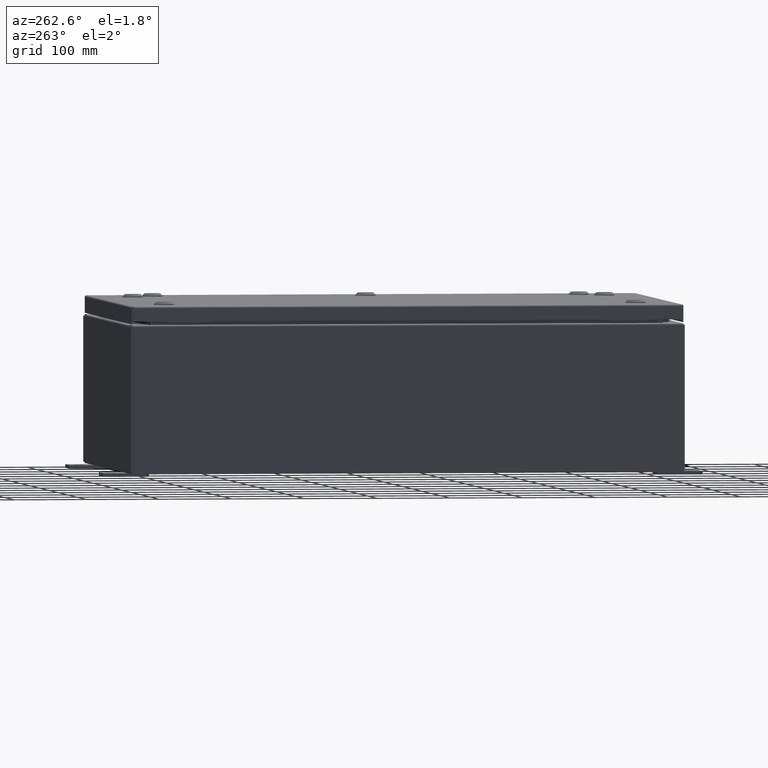
[diagram: clean part render]
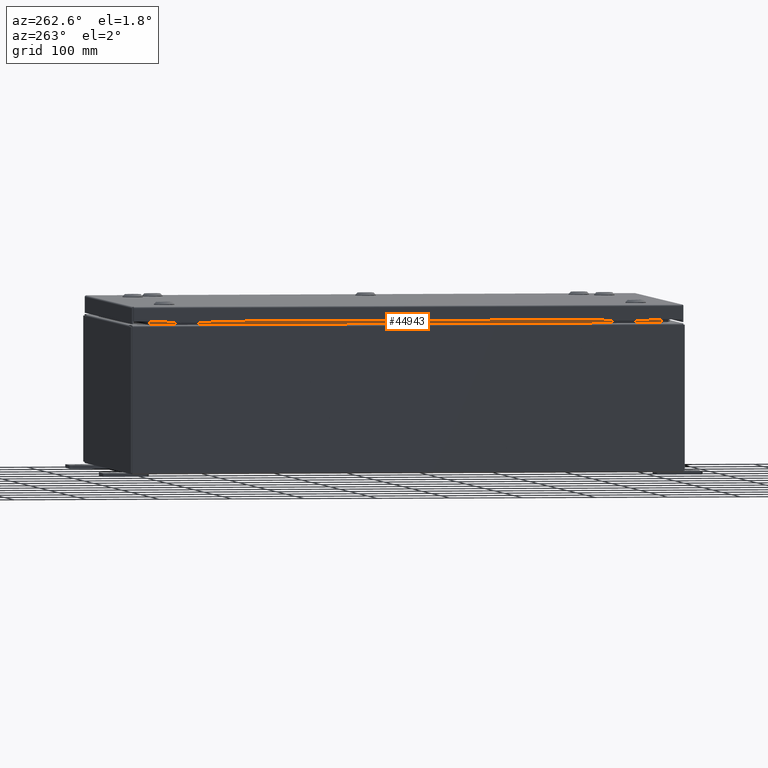
[diagram: same view with one face highlighted and labeled with its STEP entity id]
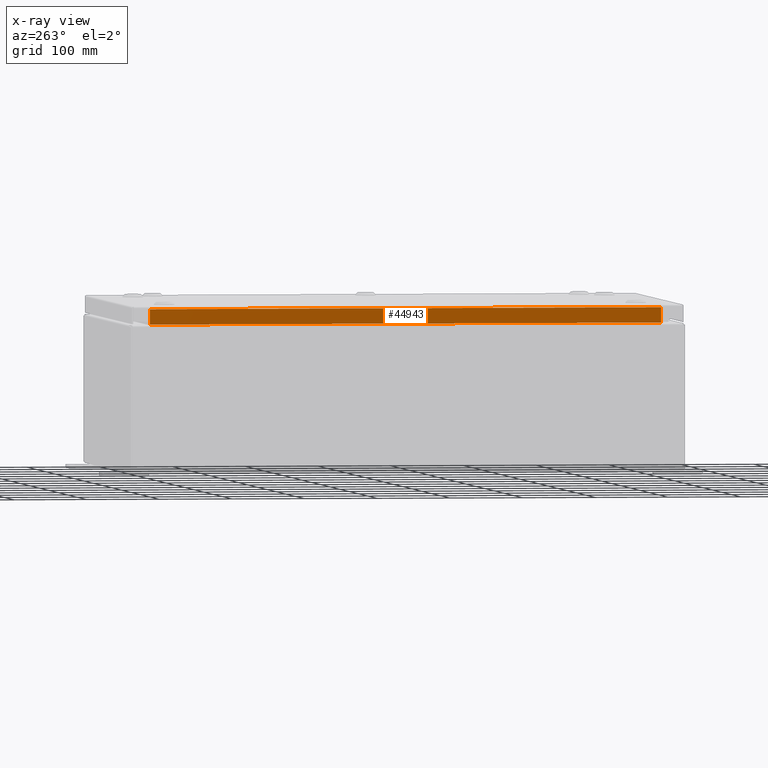
[diagram: x-ray of the same camera — body ghosted, the highlighted face saturated]
A machine part, auxiliary view. The second image highlights one B-rep face of the part: STEP entity #44943.
The next image is the same camera in x-ray: the body ghosted, the highlighted face saturated — about 0% of this face is hidden behind the body in this view.
In plain terms, the highlighted planar face has unit normal (-1, 0, -0).
Its self-contained STEP definition (entity closure, byte-faithful):
#295 = VERTEX_POINT ( 'NONE', #60943 ) ;
#2268 = DIRECTION ( 'NONE',  ( 3.542869979895294000E-015, -0.0000000000000000000, -1.000000000000000000 ) ) ;
#2283 = VECTOR ( 'NONE', #34105, 39.37007874015748100 ) ;
#2429 = EDGE_LOOP ( 'NONE', ( #15736, #14765, #26452, #62632 ) ) ;
#7676 = DIRECTION ( 'NONE',  ( -3.542869979895302300E-015, -0.0000000000000000000, 1.000000000000000000 ) ) ;
#10352 = VECTOR ( 'NONE', #7676, 39.37007874015748100 ) ;
#11947 = VERTEX_POINT ( 'NONE', #22346 ) ;
#11971 = PLANE ( 'NONE',  #39760 ) ;
#14153 = CARTESIAN_POINT ( 'NONE',  ( -8.949700000000030200, 13.84375000000000000, 8.762900000000005500 ) ) ;
#14765 = ORIENTED_EDGE ( 'NONE', *, *, #43202, .F. ) ;
#15736 = ORIENTED_EDGE ( 'NONE', *, *, #17325, .F. ) ;
#16938 = DIRECTION ( 'NONE',  ( -1.000000000000000000, 2.796520378189531300E-031, -3.542869979895303100E-015 ) ) ;
#17325 = EDGE_CURVE ( 'NONE', #25053, #11947, #54765, .T. ) ;
#19342 = CARTESIAN_POINT ( 'NONE',  ( -8.949700000000028400, -13.84374999999999600, 7.938300000000006100 ) ) ;
#22346 = CARTESIAN_POINT ( 'NONE',  ( -8.949700000000028400, -13.84374999999999800, 7.938300000000007900 ) ) ;
#25053 = VERTEX_POINT ( 'NONE', #30595 ) ;
#26452 = ORIENTED_EDGE ( 'NONE', *, *, #33775, .F. ) ;
#26690 = CARTESIAN_POINT ( 'NONE',  ( -8.949700000000000000, 2.502801842868284900E-030, -3.170762345906899300E-014 ) ) ;
#30219 = VECTOR ( 'NONE', #58776, 39.37007874015748100 ) ;
#30595 = CARTESIAN_POINT ( 'NONE',  ( -8.949700000000030200, -13.84374999999999100, 8.762900000000005500 ) ) ;
#33583 = LINE ( 'NONE', #37370, #10352 ) ;
#33775 = EDGE_CURVE ( 'NONE', #34546, #295, #33583, .T. ) ;
#34105 = DIRECTION ( 'NONE',  ( -7.893375692754529400E-017, 1.000000000000000000, 7.893375692754529400E-017 ) ) ;
#34546 = VERTEX_POINT ( 'NONE', #63287 ) ;
#37370 = CARTESIAN_POINT ( 'NONE',  ( -8.949700000000032000, 13.84375000000000500, 8.850600000000007100 ) ) ;
#39760 = AXIS2_PLACEMENT_3D ( 'NONE', #26690, #16938, #51605 ) ;
#41596 = VECTOR ( 'NONE', #2268, 39.37007874015748100 ) ;
#41825 = LINE ( 'NONE', #19342, #2283 ) ;
#43202 = EDGE_CURVE ( 'NONE', #295, #25053, #43364, .T. ) ;
#43297 = EDGE_CURVE ( 'NONE', #11947, #34546, #41825, .T. ) ;
#43364 = LINE ( 'NONE', #14153, #30219 ) ;
#44943 = ADVANCED_FACE ( 'NONE', ( #51899 ), #11971, .T. ) ;
#51605 = DIRECTION ( 'NONE',  ( -3.542869979895303100E-015, 0.0000000000000000000, 1.000000000000000000 ) ) ;
#51899 = FACE_OUTER_BOUND ( 'NONE', #2429, .T. ) ;
#54765 = LINE ( 'NONE', #61661, #41596 ) ;
#58776 = DIRECTION ( 'NONE',  ( -0.0000000000000000000, -1.000000000000000000, -0.0000000000000000000 ) ) ;
#60943 = CARTESIAN_POINT ( 'NONE',  ( -8.949700000000032000, 13.84375000000000500, 8.762900000000005500 ) ) ;
#61661 = CARTESIAN_POINT ( 'NONE',  ( -8.949700000000028400, -13.84374999999999600, 7.925300000000006200 ) ) ;
#62632 = ORIENTED_EDGE ( 'NONE', *, *, #43297, .F. ) ;
#63287 = CARTESIAN_POINT ( 'NONE',  ( -8.949700000000028400, 13.84375000000000700, 7.938300000000007900 ) ) ;